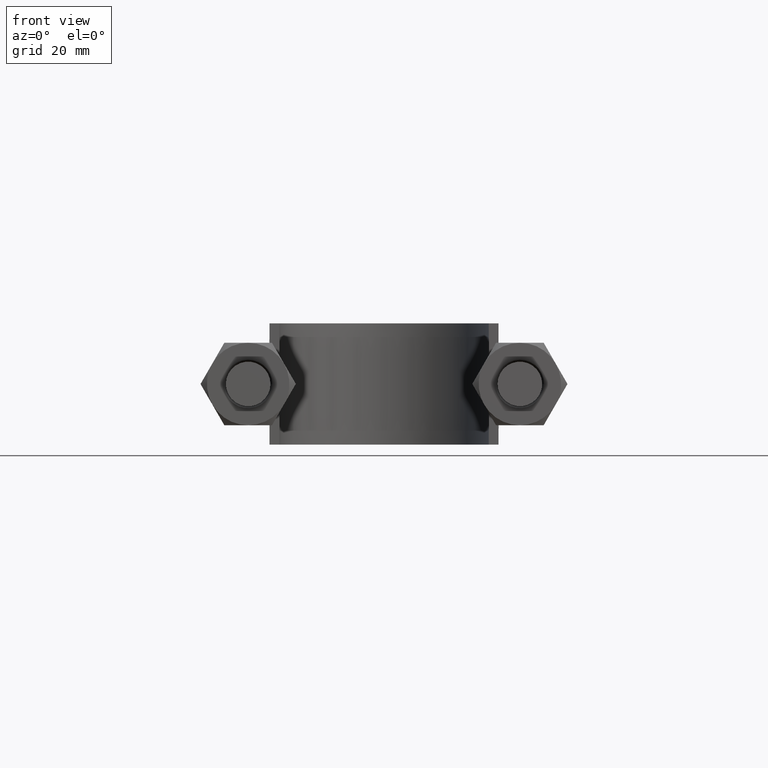
[diagram: clean part render]
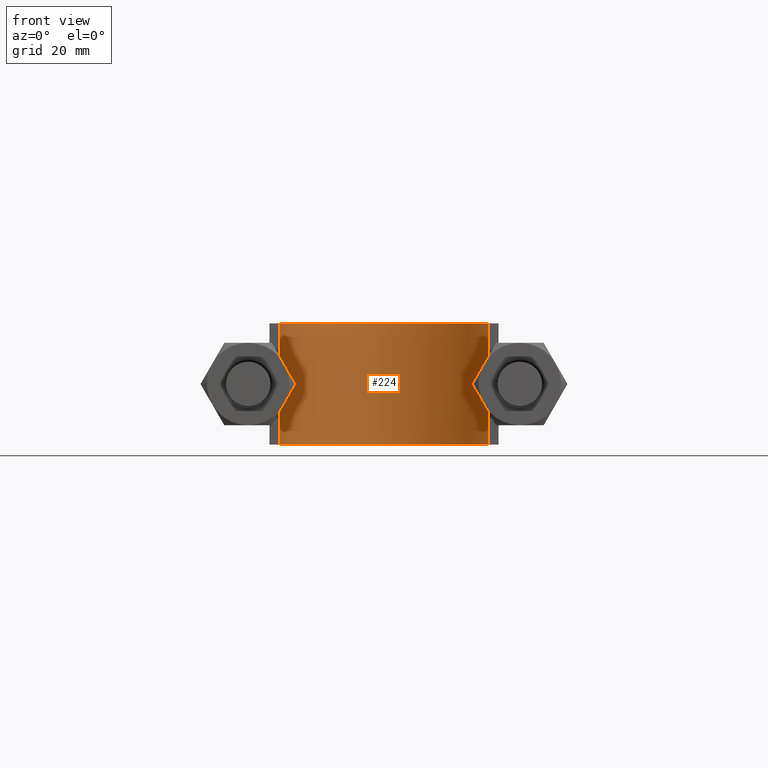
[diagram: same view with one face highlighted and labeled with its STEP entity id]
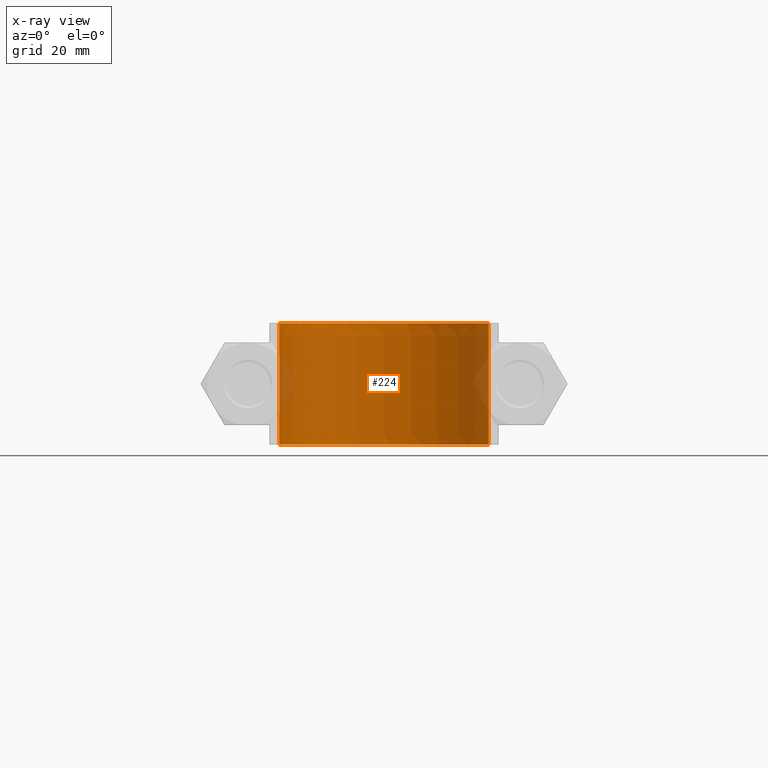
[diagram: x-ray of the same camera — body ghosted, the highlighted face saturated]
A machine part, front view. The second image highlights one B-rep face of the part: STEP entity #224.
The next image is the same camera in x-ray: the body ghosted, the highlighted face saturated — about 4% of this face is hidden behind the body in this view.
In plain terms, the highlighted face is a SurfaceOfExtrusion surface.
Its self-contained STEP definition (entity closure, byte-faithful):
#224 = ADVANCED_FACE( '', ( #309 ), #310, .T. );
#309 = FACE_OUTER_BOUND( '', #1156, .T. );
#310 = SURFACE_OF_LINEAR_EXTRUSION( '', #1157, #1158 );
#1156 = EDGE_LOOP( '', ( #1494, #1495, #1496, #1497 ) );
#1157 = B_SPLINE_CURVE_WITH_KNOTS( '', 3, ( #1498, #1499, #1500, #1501, #1502, #1503, #1504, #1505, #1506, #1507, #1508, #1509, #1510, #1511, #1512, #1513, #1514 ), .UNSPECIFIED., .F., .F., ( 4, 3, 1, 1, 1, 1, 1, 1, 1, 3, 4 ), ( -7.87012987012987, -7.00000000000000, -6.50000000000000, -6.00000000000000, -5.00000000000000, -4.00000000000000, -3.00000000000000, -2.00000000000000, -1.50000000000000, -1.00000000000000, -0.129870129870130 ), .UNSPECIFIED. );
#1158 = VECTOR( '', #1515, 1000.00000000000 );
#1494 = ORIENTED_EDGE( '', *, *, #2003, .T. );
#1495 = ORIENTED_EDGE( '', *, *, #2016, .T. );
#1496 = ORIENTED_EDGE( '', *, *, #2014, .F. );
#1497 = ORIENTED_EDGE( '', *, *, #2012, .T. );
#1498 = CARTESIAN_POINT( '', ( 21.6000000000000, 74.3000000000000, 12.5000100000909 ) );
#1499 = CARTESIAN_POINT( '', ( 21.6000000000000, 81.0000000000000, 12.5000100000909 ) );
#1500 = CARTESIAN_POINT( '', ( 21.6000000000000, 87.7000000000000, 12.5000100000909 ) );
#1501 = CARTESIAN_POINT( '', ( 21.6000000000000, 94.4000000000000, 12.5000100000909 ) );
#1502 = CARTESIAN_POINT( '', ( 21.6000000000000, 96.2707818787651, 12.5000100000909 ) );
#1503 = CARTESIAN_POINT( '', ( 21.0928042095142, 100.057843449447, 12.5000100000909 ) );
#1504 = CARTESIAN_POINT( '', ( 18.2026423381404, 107.081006693111, 12.5000100000909 ) );
#1505 = CARTESIAN_POINT( '', ( 11.3044287353241, 113.981722514767, 12.5000100000909 ) );
#1506 = CARTESIAN_POINT( '', ( 2.12679073798565E-014, 117.009138742617, 12.5000100000909 ) );
#1507 = CARTESIAN_POINT( '', ( -11.3044287353241, 113.981722514767, 12.5000100000909 ) );
#1508 = CARTESIAN_POINT( '', ( -18.2026423381403, 107.081006693111, 12.5000100000909 ) );
#1509 = CARTESIAN_POINT( '', ( -21.0928042095142, 100.057843449447, 12.5000100000909 ) );
#1510 = CARTESIAN_POINT( '', ( -21.6000000000000, 96.2707818787651, 12.5000100000909 ) );
#1511 = CARTESIAN_POINT( '', ( -21.6000000000000, 94.4000000000000, 12.5000100000909 ) );
#1512 = CARTESIAN_POINT( '', ( -21.6000000000000, 87.7000000000000, 12.5000100000909 ) );
#1513 = CARTESIAN_POINT( '', ( -21.6000000000000, 81.0000000000000, 12.5000100000909 ) );
#1514 = CARTESIAN_POINT( '', ( -21.6000000000000, 74.3000000000000, 12.5000100000909 ) );
#1515 = DIRECTION( '', ( 0.000000000000000, 0.000000000000000, -1.00000000000000 ) );
#2003 = EDGE_CURVE( '', #2155, #2156, #2157, .T. );
#2012 = EDGE_CURVE( '', #2172, #2155, #2173, .T. );
#2014 = EDGE_CURVE( '', #2172, #2175, #2176, .T. );
#2016 = EDGE_CURVE( '', #2156, #2175, #2178, .F. );
#2155 = VERTEX_POINT( '', #2405 );
#2156 = VERTEX_POINT( '', #2406 );
#2157 = LINE( '', #2407, #2408 );
#2172 = VERTEX_POINT( '', #2535 );
#2173 = B_SPLINE_CURVE_WITH_KNOTS( '', 3, ( #2536, #2537, #2538, #2539, #2540, #2541, #2542, #2543, #2544, #2545, #2546, #2547, #2548, #2549, #2550, #2551, #2552, #2553, #2554, #2555, #2556, #2557, #2558, #2559, #2560, #2561, #2562, #2563, #2564, #2565, #2566, #2567, #2568, #2569, #2570, #2571, #2572, #2573, #2574, #2575, #2576, #2577, #2578, #2579, #2580, #2581, #2582, #2583, #2584, #2585, #2586, #2587, #2588, #2589, #2590, #2591, #2592, #2593, #2594, #2595, #2596, #2597, #2598, #2599, #2600, #2601, #2602, #2603, #2604, #2605 ), .UNSPECIFIED., .F., .F., ( 4, 1, 1, 1, 2, 2, 2, 2, 2, 2, 2, 2, 2, 2, 2, 2, 2, 2, 2, 2, 2, 2, 2, 2, 2, 2, 2, 2, 2, 2, 2, 2, 2, 2, 1, 1, 1, 4 ), ( 0.000000000000000, 0.0135231659011118, 0.0169039573763897, 0.0185943531140287, 0.0194395509828482, 0.0202847488516677, 0.0219751445893066, 0.0236655403269456, 0.0270463318022235, 0.0287367275398625, 0.0304271232775015, 0.0338079147527795, 0.0371887062280575, 0.0405694977033355, 0.0439502891786135, 0.0456406849162525, 0.0473310806538915, 0.0507118721291694, 0.0524022678668084, 0.0540926636044474, 0.0574734550797254, 0.0591638508173643, 0.0608542465550033, 0.0642350380302813, 0.0659254337679203, 0.0676158295055593, 0.0709966209808372, 0.0726870167184762, 0.0743774124561152, 0.0777582039313931, 0.0811389954066710, 0.0845197868819489, 0.0879005783572269, 0.0887457762260463, 0.0895909740948658, 0.0912813698325048, 0.0946621613077828, 0.108185327208895 ), .UNSPECIFIED. );
#2175 = VERTEX_POINT( '', #2608 );
#2176 = LINE( '', #2609, #2610 );
#2178 = B_SPLINE_CURVE_WITH_KNOTS( '', 3, ( #2613, #2614, #2615, #2616, #2617, #2618, #2619, #2620, #2621, #2622, #2623, #2624, #2625, #2626, #2627, #2628, #2629 ), .UNSPECIFIED., .F., .F., ( 4, 3, 1, 1, 1, 1, 1, 1, 1, 3, 4 ), ( -7.87012987012987, -7.00000000000000, -6.50000000000000, -6.00000000000000, -5.00000000000000, -4.00000000000000, -3.00000000000000, -2.00000000000000, -1.50000000000000, -1.00000000000000, -0.129870129870130 ), .UNSPECIFIED. );
#2405 = CARTESIAN_POINT( '', ( -21.6000000000000, 74.3000000000000, 12.5000000000000 ) );
#2406 = CARTESIAN_POINT( '', ( -21.6000000000000, 74.3000000000000, -12.5000000000000 ) );
#2407 = CARTESIAN_POINT( '', ( -21.6000000000000, 74.3000000000000, 12.5000100000909 ) );
#2408 = VECTOR( '', #3054, 1000.00000000000 );
#2535 = CARTESIAN_POINT( '', ( 21.6000000000000, 74.3000000000000, 12.5000000000000 ) );
#2536 = CARTESIAN_POINT( '', ( 21.6000000000000, 74.3000000000000, 12.5000000000000 ) );
#2537 = CARTESIAN_POINT( '', ( 21.6000000000000, 78.8078030796336, 12.5000000000000 ) );
#2538 = CARTESIAN_POINT( '', ( 21.6000000000000, 84.4425569291755, 12.5000000000000 ) );
#2539 = CARTESIAN_POINT( '', ( 21.6000000000000, 90.6407861636716, 12.5000000000000 ) );
#2540 = CARTESIAN_POINT( '', ( 21.6000000000000, 92.6129500110114, 12.5000000000000 ) );
#2541 = CARTESIAN_POINT( '', ( 21.6000000000000, 93.4581630884426, 12.5000000000000 ) );
#2542 = CARTESIAN_POINT( '', ( 21.6000000000000, 94.0216384733968, 12.5000000000000 ) );
#2543 = CARTESIAN_POINT( '', ( 21.6016868866854, 94.3033862855929, 12.5000000000000 ) );
#2544 = CARTESIAN_POINT( '', ( 21.5941473148947, 95.1485541327497, 12.5000000000000 ) );
#2545 = CARTESIAN_POINT( '', ( 21.5662932291955, 95.7118624196278, 12.5000000000000 ) );
#2546 = CARTESIAN_POINT( '', ( 21.4660466240226, 96.8382118050556, 12.5000000000000 ) );
#2547 = CARTESIAN_POINT( '', ( 21.3934997931487, 97.4007781127304, 12.5000000000000 ) );
#2548 = CARTESIAN_POINT( '', ( 21.1137244660228, 99.0644770260069, 12.5000000000000 ) );
#2549 = CARTESIAN_POINT( '', ( 20.8443432397077, 100.149868135551, 12.5000000000000 ) );
#2550 = CARTESIAN_POINT( '', ( 20.3169229678079, 101.742614185705, 12.5000000000000 ) );
#2551 = CARTESIAN_POINT( '', ( 20.1204432841999, 102.267606526457, 12.5000000000000 ) );
#2552 = CARTESIAN_POINT( '', ( 19.6849320818904, 103.305399662790, 12.5000000000000 ) );
#2553 = CARTESIAN_POINT( '', ( 19.4446614349743, 103.820429757400, 12.5000000000000 ) );
#2554 = CARTESIAN_POINT( '', ( 18.6684950229906, 105.324438325089, 12.5000000000000 ) );
#2555 = CARTESIAN_POINT( '', ( 18.0769270085056, 106.274451372194, 12.5000000000000 ) );
#2556 = CARTESIAN_POINT( '', ( 16.7529195258009, 108.074398914274, 12.5000000000000 ) );
#2557 = CARTESIAN_POINT( '', ( 16.0200911873579, 108.925287386339, 12.5000000000000 ) );
#2558 = CARTESIAN_POINT( '', ( 14.4128259168033, 110.521474735898, 12.5000000000000 ) );
#2559 = CARTESIAN_POINT( '', ( 13.5580348793817, 111.247479280974, 12.5000000000000 ) );
#2560 = CARTESIAN_POINT( '', ( 11.7487973458944, 112.559060308820, 12.5000000000000 ) );
#2561 = CARTESIAN_POINT( '', ( 10.7940352803573, 113.144192111389, 12.5000000000000 ) );
#2562 = CARTESIAN_POINT( '', ( 9.28291683850485, 113.910602840949, 12.5000000000000 ) );
#2563 = CARTESIAN_POINT( '', ( 8.76688933898163, 114.146981426296, 12.5000000000000 ) );
#2564 = CARTESIAN_POINT( '', ( 7.72704803755930, 114.575165336050, 12.5000000000000 ) );
#2565 = CARTESIAN_POINT( '', ( 7.20104342927318, 114.768127044196, 12.5000000000000 ) );
#2566 = CARTESIAN_POINT( '', ( 5.60522003708373, 115.285157603209, 12.5000000000000 ) );
#2567 = CARTESIAN_POINT( '', ( 4.51773658274786, 115.547875131347, 12.5000000000000 ) );
#2568 = CARTESIAN_POINT( '', ( 2.85023521541967, 115.815960282513, 12.5000000000000 ) );
#2569 = CARTESIAN_POINT( '', ( 2.28591125961179, 115.884292763220, 12.5000000000000 ) );
#2570 = CARTESIAN_POINT( '', ( 1.16191586217194, 115.975553496176, 12.5000000000000 ) );
#2571 = CARTESIAN_POINT( '', ( 0.601211685233114, 115.998851142548, 12.5000000000000 ) );
#2572 = CARTESIAN_POINT( '', ( -1.07704505152029, 116.002173598778, 12.5000000000000 ) );
#2573 = CARTESIAN_POINT( '', ( -2.19076731773878, 115.916068192621, 12.5000000000000 ) );
#2574 = CARTESIAN_POINT( '', ( -3.85383561017258, 115.657161376193, 12.5000000000000 ) );
#2575 = CARTESIAN_POINT( '', ( -4.40765029596289, 115.548936234831, 12.5000000000000 ) );
#2576 = CARTESIAN_POINT( '', ( -5.50969437777185, 115.288555389738, 12.5000000000000 ) );
#2577 = CARTESIAN_POINT( '', ( -6.05215769470162, 115.137823050637, 12.5000000000000 ) );
#2578 = CARTESIAN_POINT( '', ( -7.65458034955579, 114.625701667126, 12.5000000000000 ) );
#2579 = CARTESIAN_POINT( '', ( -8.68976887568343, 114.204859840919, 12.5000000000000 ) );
#2580 = CARTESIAN_POINT( '', ( -10.1920361507629, 113.452354089368, 12.5000000000000 ) );
#2581 = CARTESIAN_POINT( '', ( -10.6843068104454, 113.181153631431, 12.5000000000000 ) );
#2582 = CARTESIAN_POINT( '', ( -11.6512116265084, 112.596423090227, 12.5000000000000 ) );
#2583 = CARTESIAN_POINT( '', ( -12.1245518901084, 112.283560658135, 12.5000000000000 ) );
#2584 = CARTESIAN_POINT( '', ( -13.4940506802498, 111.299382950520, 12.5000000000000 ) );
#2585 = CARTESIAN_POINT( '', ( -14.3483977984834, 110.577983135197, 12.5000000000000 ) );
#2586 = CARTESIAN_POINT( '', ( -15.5445244245930, 109.400837527133, 12.5000000000000 ) );
#2587 = CARTESIAN_POINT( '', ( -15.9289126706020, 108.992516410573, 12.5000000000000 ) );
#2588 = CARTESIAN_POINT( '', ( -16.6684043052147, 108.143279340330, 12.5000000000000 ) );
#2589 = CARTESIAN_POINT( '', ( -17.0248134305994, 107.700429367734, 12.5000000000000 ) );
#2590 = CARTESIAN_POINT( '', ( -18.0326739447613, 106.342314908165, 12.5000000000000 ) );
#2591 = CARTESIAN_POINT( '', ( -18.6267452534930, 105.394304591917, 12.5000000000000 ) );
#2592 = CARTESIAN_POINT( '', ( -19.6599214235238, 103.413468438516, 12.5000000000000 ) );
#2593 = CARTESIAN_POINT( '', ( -20.1004689641876, 102.379142876716, 12.5000000000000 ) );
#2594 = CARTESIAN_POINT( '', ( -20.8221292198643, 100.232648644471, 12.5000000000000 ) );
#2595 = CARTESIAN_POINT( '', ( -21.0954136423922, 99.1448754351829, 12.5000000000000 ) );
#2596 = CARTESIAN_POINT( '', ( -21.4751329492846, 96.9416443697407, 12.5000000000000 ) );
#2597 = CARTESIAN_POINT( '', ( -21.5818004860624, 95.8262251166300, 12.5000000000000 ) );
#2598 = CARTESIAN_POINT( '', ( -21.6019152180314, 94.4131649802126, 12.5000000000000 ) );
#2599 = CARTESIAN_POINT( '', ( -21.6000000000000, 94.1295676581123, 12.5000000000000 ) );
#2600 = CARTESIAN_POINT( '', ( -21.6000000000000, 93.5630085821662, 12.5000000000000 ) );
#2601 = CARTESIAN_POINT( '', ( -21.6000000000000, 92.7131699682472, 12.5000000000000 ) );
#2602 = CARTESIAN_POINT( '', ( -21.6000000000000, 90.7302132024360, 12.5000000000000 ) );
#2603 = CARTESIAN_POINT( '', ( -21.6000000000000, 84.4980633670292, 12.5000000000000 ) );
#2604 = CARTESIAN_POINT( '', ( -21.6000000000000, 78.8324726075685, 12.5000000000000 ) );
#2605 = CARTESIAN_POINT( '', ( -21.6000000000000, 74.3000000000000, 12.5000000000000 ) );
#2608 = CARTESIAN_POINT( '', ( 21.6000000000000, 74.3000000000000, -12.5000000000000 ) );
#2609 = CARTESIAN_POINT( '', ( 21.6000000000000, 74.3000000000000, 12.5000100000909 ) );
#2610 = VECTOR( '', #3058, 1000.00000000000 );
#2613 = CARTESIAN_POINT( '', ( 21.6000000000000, 74.3000000000000, -12.5000000000000 ) );
#2614 = CARTESIAN_POINT( '', ( 21.6000000000000, 81.0000000000000, -12.5000000000000 ) );
#2615 = CARTESIAN_POINT( '', ( 21.6000000000000, 87.7000000000000, -12.5000000000000 ) );
#2616 = CARTESIAN_POINT( '', ( 21.6000000000000, 94.4000000000000, -12.5000000000000 ) );
#2617 = CARTESIAN_POINT( '', ( 21.6000000000000, 96.2707818787651, -12.5000000000000 ) );
#2618 = CARTESIAN_POINT( '', ( 21.0928042095142, 100.057843449447, -12.5000000000000 ) );
#2619 = CARTESIAN_POINT( '', ( 18.2026423381404, 107.081006693111, -12.5000000000000 ) );
#2620 = CARTESIAN_POINT( '', ( 11.3044287353241, 113.981722514767, -12.5000000000000 ) );
#2621 = CARTESIAN_POINT( '', ( 2.12679073798565E-014, 117.009138742617, -12.5000000000000 ) );
#2622 = CARTESIAN_POINT( '', ( -11.3044287353241, 113.981722514767, -12.5000000000000 ) );
#2623 = CARTESIAN_POINT( '', ( -18.2026423381403, 107.081006693111, -12.5000000000000 ) );
#2624 = CARTESIAN_POINT( '', ( -21.0928042095142, 100.057843449447, -12.5000000000000 ) );
#2625 = CARTESIAN_POINT( '', ( -21.6000000000000, 96.2707818787651, -12.5000000000000 ) );
#2626 = CARTESIAN_POINT( '', ( -21.6000000000000, 94.4000000000000, -12.5000000000000 ) );
#2627 = CARTESIAN_POINT( '', ( -21.6000000000000, 87.7000000000000, -12.5000000000000 ) );
#2628 = CARTESIAN_POINT( '', ( -21.6000000000000, 81.0000000000000, -12.5000000000000 ) );
#2629 = CARTESIAN_POINT( '', ( -21.6000000000000, 74.3000000000000, -12.5000000000000 ) );
#3054 = DIRECTION( '', ( 0.000000000000000, 0.000000000000000, -1.00000000000000 ) );
#3058 = DIRECTION( '', ( 0.000000000000000, 0.000000000000000, -1.00000000000000 ) );